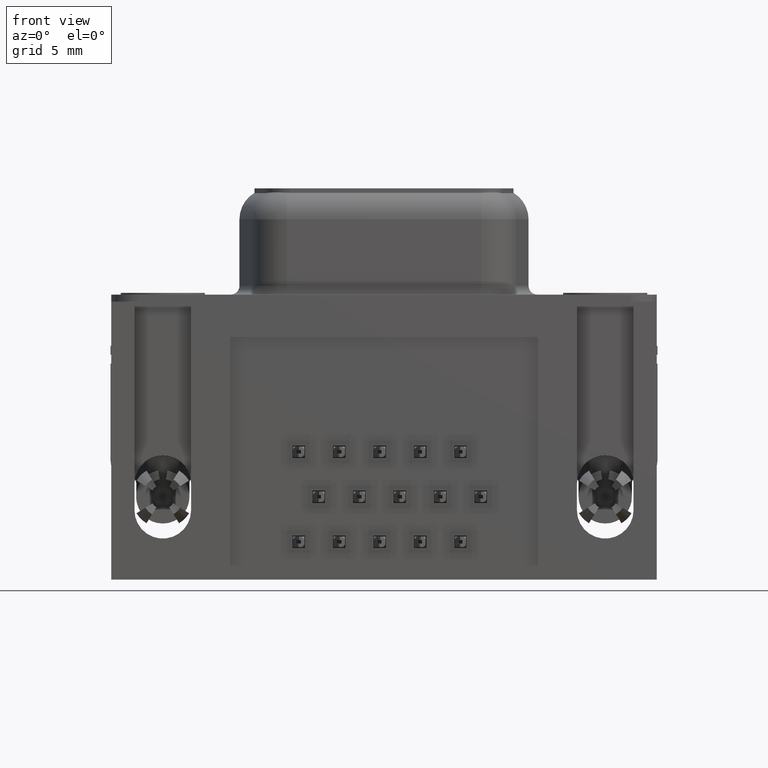
[diagram: clean part render]
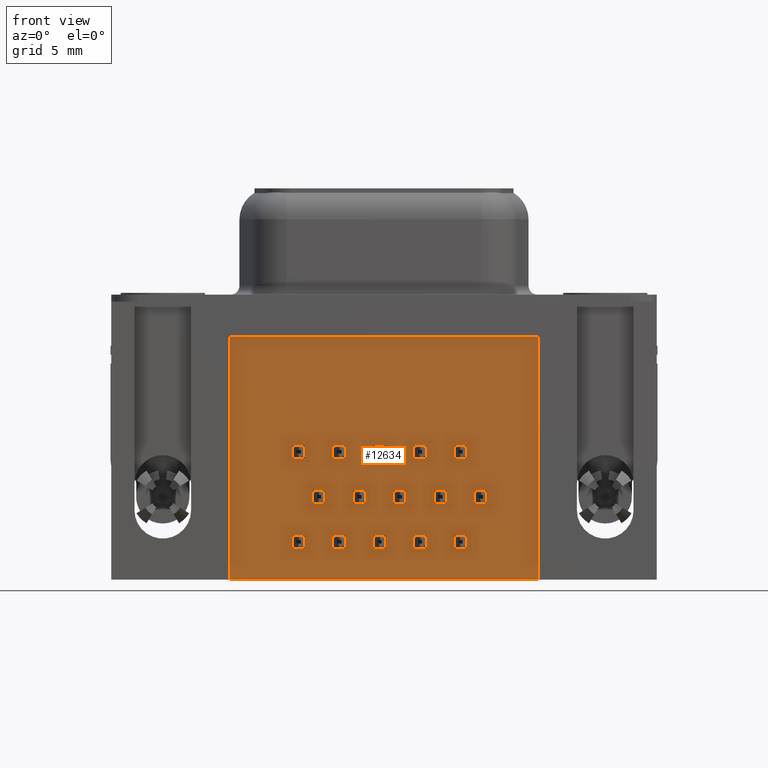
[diagram: same view with one face highlighted and labeled with its STEP entity id]
A machine part, front view. The second image highlights one B-rep face of the part: STEP entity #12634.
In plain terms, the highlighted planar face has unit normal (-0, -1, 0).
Its self-contained STEP definition (entity closure, byte-faithful):
#47 = VECTOR ( 'NONE', #7856, 1000.000000000000000 ) ;
#62 = CARTESIAN_POINT ( 'NONE',  ( 10.30700000000000900, -5.925000000000002500, -8.139999999999998800 ) ) ;
#116 = EDGE_CURVE ( 'NONE', #19990, #3479, #2802, .T. ) ;
#119 = ORIENTED_EDGE ( 'NONE', *, *, #27812, .F. ) ;
#156 = VERTEX_POINT ( 'NONE', #29931 ) ;
#193 = CARTESIAN_POINT ( 'NONE',  ( 15.32200000000001500, -5.925000000000004300, -10.68000000000000900 ) ) ;
#194 = EDGE_CURVE ( 'NONE', #5599, #8864, #23831, .T. ) ;
#323 = DIRECTION ( 'NONE',  ( -1.000000000000000000, -0.0000000000000000000, -0.0000000000000000000 ) ) ;
#366 = FACE_BOUND ( 'NONE', #14737, .T. ) ;
#397 = EDGE_CURVE ( 'NONE', #3912, #19319, #4724, .T. ) ;
#506 = ORIENTED_EDGE ( 'NONE', *, *, #3381, .F. ) ;
#514 = EDGE_CURVE ( 'NONE', #17130, #23204, #18872, .T. ) ;
#521 = CARTESIAN_POINT ( 'NONE',  ( 10.75000000000002100, -5.925000000000002500, -10.68000000000000900 ) ) ;
#527 = VECTOR ( 'NONE', #20125, 1000.000000000000000 ) ;
#618 = LINE ( 'NONE', #521, #5623 ) ;
#665 = CARTESIAN_POINT ( 'NONE',  ( 9.607000000000017100, -5.925000000000002500, -8.839999999999998100 ) ) ;
#680 = ORIENTED_EDGE ( 'NONE', *, *, #17107, .F. ) ;
#748 = DIRECTION ( 'NONE',  ( 1.000000000000000000, 0.0000000000000000000, 0.0000000000000000000 ) ) ;
#764 = CARTESIAN_POINT ( 'NONE',  ( 16.46500000000001400, -5.925000000000004300, -8.139999999999998800 ) ) ;
#902 = DIRECTION ( 'NONE',  ( -0.0000000000000000000, -0.0000000000000000000, 1.000000000000000000 ) ) ;
#903 = EDGE_CURVE ( 'NONE', #4232, #30013, #16948, .T. ) ;
#1036 = VECTOR ( 'NONE', #20446, 1000.000000000000000 ) ;
#1040 = DIRECTION ( 'NONE',  ( -0.0000000000000000000, -0.0000000000000000000, 1.000000000000000000 ) ) ;
#1090 = CARTESIAN_POINT ( 'NONE',  ( 8.021000000000018600, -5.925000000000002500, -13.22000000000000200 ) ) ;
#1164 = DIRECTION ( 'NONE',  ( 0.0000000000000000000, 0.0000000000000000000, -1.000000000000000000 ) ) ;
#1210 = CARTESIAN_POINT ( 'NONE',  ( 14.87900000000002300, -5.925000000000003400, -13.92000000000000000 ) ) ;
#1222 = VECTOR ( 'NONE', #1465, 1000.000000000000000 ) ;
#1254 = CARTESIAN_POINT ( 'NONE',  ( 14.17900000000000900, -5.925000000000003400, -8.839999999999998100 ) ) ;
#1270 = DIRECTION ( 'NONE',  ( -1.000000000000000000, -0.0000000000000000000, -0.0000000000000000000 ) ) ;
#1310 = DIRECTION ( 'NONE',  ( 1.000000000000000000, 0.0000000000000000000, 0.0000000000000000000 ) ) ;
#1358 = CARTESIAN_POINT ( 'NONE',  ( 10.30700000000002300, -5.925000000000002500, -13.22000000000000100 ) ) ;
#1387 = VECTOR ( 'NONE', #902, 1000.000000000000000 ) ;
#1465 = DIRECTION ( 'NONE',  ( 0.0000000000000000000, 0.0000000000000000000, -1.000000000000000000 ) ) ;
#1528 = CARTESIAN_POINT ( 'NONE',  ( 10.30700000000002300, -5.925000000000002500, -13.92000000000000000 ) ) ;
#1558 = LINE ( 'NONE', #11611, #27578 ) ;
#1619 = CARTESIAN_POINT ( 'NONE',  ( 15.32200000000001500, -5.925000000000004300, -10.68000000000000900 ) ) ;
#1622 = EDGE_CURVE ( 'NONE', #7292, #3862, #13840, .T. ) ;
#1764 = VERTEX_POINT ( 'NONE', #5960 ) ;
#1804 = CARTESIAN_POINT ( 'NONE',  ( 12.59300000000002000, -5.925000000000003400, -13.22000000000000100 ) ) ;
#1815 = CARTESIAN_POINT ( 'NONE',  ( 11.89300000000001300, -5.925000000000003400, -8.139999999999998800 ) ) ;
#1817 = LINE ( 'NONE', #12023, #7559 ) ;
#1870 = DIRECTION ( 'NONE',  ( 0.0000000000000000000, 0.0000000000000000000, -1.000000000000000000 ) ) ;
#1891 = VERTEX_POINT ( 'NONE', #30889 ) ;
#1928 = VECTOR ( 'NONE', #15178, 1000.000000000000000 ) ;
#1985 = ORIENTED_EDGE ( 'NONE', *, *, #28158, .F. ) ;
#2022 = LINE ( 'NONE', #16166, #1222 ) ;
#2292 = DIRECTION ( 'NONE',  ( -0.0000000000000000000, -0.0000000000000000000, 1.000000000000000000 ) ) ;
#2302 = VERTEX_POINT ( 'NONE', #10138 ) ;
#2353 = DIRECTION ( 'NONE',  ( -0.0000000000000000000, -0.0000000000000000000, 1.000000000000000000 ) ) ;
#2418 = LINE ( 'NONE', #25870, #27655 ) ;
#2545 = VECTOR ( 'NONE', #1040, 1000.000000000000000 ) ;
#2633 = CARTESIAN_POINT ( 'NONE',  ( 16.46500000000002100, -5.925000000000004300, -13.22000000000000100 ) ) ;
#2741 = EDGE_LOOP ( 'NONE', ( #6995, #680, #12143, #27664 ) ) ;
#2781 = CARTESIAN_POINT ( 'NONE',  ( 9.164000000000017500, -5.925000000000002500, -10.68000000000001000 ) ) ;
#2802 = LINE ( 'NONE', #12726, #9314 ) ;
#2914 = LINE ( 'NONE', #12033, #28154 ) ;
#2917 = CARTESIAN_POINT ( 'NONE',  ( 16.46500000000002100, -5.925000000000004300, -13.92000000000000000 ) ) ;
#2931 = DIRECTION ( 'NONE',  ( 1.000000000000000000, 0.0000000000000000000, 0.0000000000000000000 ) ) ;
#2985 = CARTESIAN_POINT ( 'NONE',  ( 3.790000000000006300, -5.925000000000003400, -15.69999999999999900 ) ) ;
#3043 = VECTOR ( 'NONE', #23812, 1000.000000000000000 ) ;
#3087 = EDGE_CURVE ( 'NONE', #13198, #17095, #2418, .T. ) ;
#3180 = VECTOR ( 'NONE', #4053, 1000.000000000000000 ) ;
#3191 = PLANE ( 'NONE',  #22057 ) ;
#3194 = VERTEX_POINT ( 'NONE', #4420 ) ;
#3229 = CARTESIAN_POINT ( 'NONE',  ( 9.607000000000017100, -5.925000000000002500, -8.139999999999998800 ) ) ;
#3268 = CARTESIAN_POINT ( 'NONE',  ( 16.46500000000001400, -5.925000000000004300, -8.839999999999998100 ) ) ;
#3285 = CARTESIAN_POINT ( 'NONE',  ( 7.321000000000013900, -5.925000000000002500, -8.140000000000000600 ) ) ;
#3381 = EDGE_CURVE ( 'NONE', #156, #4595, #2022, .T. ) ;
#3400 = VECTOR ( 'NONE', #10966, 1000.000000000000000 ) ;
#3404 = DIRECTION ( 'NONE',  ( 0.0000000000000000000, 0.0000000000000000000, -1.000000000000000000 ) ) ;
#3479 = VERTEX_POINT ( 'NONE', #14333 ) ;
#3581 = EDGE_LOOP ( 'NONE', ( #6596, #23654, #3985, #10088 ) ) ;
#3611 = EDGE_LOOP ( 'NONE', ( #16259, #24630, #26099, #25499 ) ) ;
#3740 = DIRECTION ( 'NONE',  ( 1.000000000000000000, 0.0000000000000000000, 0.0000000000000000000 ) ) ;
#3777 = VECTOR ( 'NONE', #9690, 1000.000000000000000 ) ;
#3783 = CARTESIAN_POINT ( 'NONE',  ( 11.45000000000001400, -5.925000000000003400, -11.38000000000000600 ) ) ;
#3794 = CARTESIAN_POINT ( 'NONE',  ( 9.607000000000017100, -5.925000000000002500, -8.839999999999998100 ) ) ;
#3807 = CARTESIAN_POINT ( 'NONE',  ( 13.73600000000001700, -5.925000000000003400, -10.68000000000000900 ) ) ;
#3862 = VERTEX_POINT ( 'NONE', #31135 ) ;
#3880 = CARTESIAN_POINT ( 'NONE',  ( 13.03600000000001700, -5.925000000000003400, -10.68000000000000900 ) ) ;
#3912 = VERTEX_POINT ( 'NONE', #31452 ) ;
#3922 = VECTOR ( 'NONE', #26040, 1000.000000000000000 ) ;
#3985 = ORIENTED_EDGE ( 'NONE', *, *, #23535, .F. ) ;
#4010 = DIRECTION ( 'NONE',  ( 0.0000000000000000000, 0.0000000000000000000, -1.000000000000000000 ) ) ;
#4053 = DIRECTION ( 'NONE',  ( -3.798664545934615100E-016, 0.0000000000000000000, -1.000000000000000000 ) ) ;
#4077 = VECTOR ( 'NONE', #4566, 1000.000000000000000 ) ;
#4232 = VERTEX_POINT ( 'NONE', #28357 ) ;
#4239 = LINE ( 'NONE', #7167, #22954 ) ;
#4420 = CARTESIAN_POINT ( 'NONE',  ( 14.17900000000002300, -5.925000000000003400, -13.92000000000000000 ) ) ;
#4470 = VECTOR ( 'NONE', #31572, 1000.000000000000000 ) ;
#4501 = EDGE_CURVE ( 'NONE', #25307, #22380, #21479, .T. ) ;
#4539 = LINE ( 'NONE', #7274, #29021 ) ;
#4566 = DIRECTION ( 'NONE',  ( 1.000000000000000000, 0.0000000000000000000, 0.0000000000000000000 ) ) ;
#4589 = VECTOR ( 'NONE', #17319, 1000.000000000000000 ) ;
#4595 = VERTEX_POINT ( 'NONE', #7420 ) ;
#4724 = LINE ( 'NONE', #18703, #3180 ) ;
#4730 = CARTESIAN_POINT ( 'NONE',  ( 3.790000000000011100, -5.925000000000001600, -2.000000000000000000 ) ) ;
#4846 = EDGE_CURVE ( 'NONE', #29199, #27840, #14584, .T. ) ;
#4953 = ORIENTED_EDGE ( 'NONE', *, *, #7003, .F. ) ;
#5128 = VECTOR ( 'NONE', #17340, 1000.000000000000000 ) ;
#5131 = CARTESIAN_POINT ( 'NONE',  ( 21.20000000000001000, -5.925000000000005200, -2.000000000000000000 ) ) ;
#5167 = EDGE_CURVE ( 'NONE', #14052, #22265, #20671, .T. ) ;
#5370 = FACE_BOUND ( 'NONE', #20260, .T. ) ;
#5379 = DIRECTION ( 'NONE',  ( 1.000000000000000000, 0.0000000000000000000, 0.0000000000000000000 ) ) ;
#5498 = ORIENTED_EDGE ( 'NONE', *, *, #5713, .F. ) ;
#5563 = LINE ( 'NONE', #29329, #30783 ) ;
#5599 = VERTEX_POINT ( 'NONE', #16784 ) ;
#5623 = VECTOR ( 'NONE', #20032, 1000.000000000000000 ) ;
#5650 = DIRECTION ( 'NONE',  ( -1.992789748393804400E-016, -1.000000000000000000, 7.569939764725505800E-032 ) ) ;
#5699 = LINE ( 'NONE', #30558, #22892 ) ;
#5713 = EDGE_CURVE ( 'NONE', #26038, #21771, #24809, .T. ) ;
#5763 = EDGE_CURVE ( 'NONE', #11571, #27091, #16061, .T. ) ;
#5799 = CARTESIAN_POINT ( 'NONE',  ( 15.32200000000001500, -5.925000000000004300, -10.68000000000000900 ) ) ;
#5841 = VECTOR ( 'NONE', #26348, 1000.000000000000000 ) ;
#5905 = LINE ( 'NONE', #26110, #18932 ) ;
#5917 = LINE ( 'NONE', #11842, #30373 ) ;
#5960 = CARTESIAN_POINT ( 'NONE',  ( 17.16500000000002000, -5.925000000000004300, -13.92000000000000000 ) ) ;
#6001 = EDGE_CURVE ( 'NONE', #23204, #21249, #17200, .T. ) ;
#6130 = FACE_BOUND ( 'NONE', #21651, .T. ) ;
#6171 = CARTESIAN_POINT ( 'NONE',  ( 15.32200000000001500, -5.925000000000004300, -11.38000000000000600 ) ) ;
#6228 = EDGE_CURVE ( 'NONE', #21193, #3194, #30522, .T. ) ;
#6274 = DIRECTION ( 'NONE',  ( -0.0000000000000000000, -0.0000000000000000000, 1.000000000000000000 ) ) ;
#6335 = CARTESIAN_POINT ( 'NONE',  ( 12.59300000000002000, -5.925000000000003400, -13.92000000000000000 ) ) ;
#6384 = EDGE_CURVE ( 'NONE', #30564, #24772, #19477, .T. ) ;
#6596 = ORIENTED_EDGE ( 'NONE', *, *, #25255, .F. ) ;
#6720 = LINE ( 'NONE', #13245, #31150 ) ;
#6841 = CARTESIAN_POINT ( 'NONE',  ( 7.321000000000021000, -5.925000000000002500, -13.22000000000000200 ) ) ;
#6907 = FACE_BOUND ( 'NONE', #13908, .T. ) ;
#6974 = VECTOR ( 'NONE', #1270, 1000.000000000000000 ) ;
#6995 = ORIENTED_EDGE ( 'NONE', *, *, #8642, .F. ) ;
#7003 = EDGE_CURVE ( 'NONE', #22132, #8216, #25889, .T. ) ;
#7044 = CARTESIAN_POINT ( 'NONE',  ( 9.607000000000017100, -5.925000000000002500, -13.22000000000000100 ) ) ;
#7069 = ORIENTED_EDGE ( 'NONE', *, *, #15560, .F. ) ;
#7088 = EDGE_LOOP ( 'NONE', ( #20973, #18049, #16153, #13719 ) ) ;
#7103 = VERTEX_POINT ( 'NONE', #30043 ) ;
#7152 = EDGE_LOOP ( 'NONE', ( #29579, #18508, #17437, #12884 ) ) ;
#7167 = CARTESIAN_POINT ( 'NONE',  ( 7.321000000000013900, -5.925000000000002500, -8.839999999999999900 ) ) ;
#7274 = CARTESIAN_POINT ( 'NONE',  ( 8.021000000000018600, -5.925000000000002500, -13.22000000000000200 ) ) ;
#7292 = VERTEX_POINT ( 'NONE', #31594 ) ;
#7320 = VECTOR ( 'NONE', #1164, 1000.000000000000000 ) ;
#7420 = CARTESIAN_POINT ( 'NONE',  ( 10.75000000000002100, -5.925000000000002500, -11.38000000000000600 ) ) ;
#7439 = EDGE_CURVE ( 'NONE', #7644, #2302, #16752, .T. ) ;
#7559 = VECTOR ( 'NONE', #14477, 1000.000000000000000 ) ;
#7597 = EDGE_CURVE ( 'NONE', #1891, #4232, #20919, .T. ) ;
#7644 = VERTEX_POINT ( 'NONE', #6171 ) ;
#7669 = FACE_BOUND ( 'NONE', #30908, .T. ) ;
#7675 = VECTOR ( 'NONE', #7706, 1000.000000000000000 ) ;
#7706 = DIRECTION ( 'NONE',  ( 0.0000000000000000000, 0.0000000000000000000, -1.000000000000000000 ) ) ;
#7771 = VERTEX_POINT ( 'NONE', #28613 ) ;
#7856 = DIRECTION ( 'NONE',  ( 0.0000000000000000000, 0.0000000000000000000, -1.000000000000000000 ) ) ;
#8011 = ORIENTED_EDGE ( 'NONE', *, *, #6228, .F. ) ;
#8129 = EDGE_LOOP ( 'NONE', ( #8314, #30347, #7069, #25015 ) ) ;
#8170 = CARTESIAN_POINT ( 'NONE',  ( 16.02200000000001600, -5.925000000000004300, -10.68000000000000900 ) ) ;
#8208 = VERTEX_POINT ( 'NONE', #21093 ) ;
#8216 = VERTEX_POINT ( 'NONE', #1619 ) ;
#8314 = ORIENTED_EDGE ( 'NONE', *, *, #15668, .F. ) ;
#8409 = VERTEX_POINT ( 'NONE', #29311 ) ;
#8422 = EDGE_CURVE ( 'NONE', #4595, #19990, #20924, .T. ) ;
#8454 = CARTESIAN_POINT ( 'NONE',  ( 21.20000000000001000, -5.925000000000005200, -2.000000000000000000 ) ) ;
#8475 = LINE ( 'NONE', #13493, #6974 ) ;
#8523 = EDGE_CURVE ( 'NONE', #3479, #156, #618, .T. ) ;
#8631 = CARTESIAN_POINT ( 'NONE',  ( 8.021000000000013200, -5.925000000000002500, -8.839999999999999900 ) ) ;
#8642 = EDGE_CURVE ( 'NONE', #29347, #18536, #22054, .T. ) ;
#8681 = VECTOR ( 'NONE', #27042, 1000.000000000000000 ) ;
#8712 = VECTOR ( 'NONE', #24110, 1000.000000000000000 ) ;
#8858 = EDGE_CURVE ( 'NONE', #26509, #7292, #9436, .T. ) ;
#8864 = VERTEX_POINT ( 'NONE', #14230 ) ;
#9000 = VECTOR ( 'NONE', #20340, 1000.000000000000000 ) ;
#9035 = LINE ( 'NONE', #3794, #14786 ) ;
#9291 = DIRECTION ( 'NONE',  ( -1.000000000000000000, -0.0000000000000000000, -0.0000000000000000000 ) ) ;
#9314 = VECTOR ( 'NONE', #27350, 1000.000000000000000 ) ;
#9356 = VECTOR ( 'NONE', #19497, 1000.000000000000000 ) ;
#9389 = DIRECTION ( 'NONE',  ( -1.000000000000000000, -0.0000000000000000000, -0.0000000000000000000 ) ) ;
#9436 = LINE ( 'NONE', #6841, #21667 ) ;
#9465 = VECTOR ( 'NONE', #5379, 1000.000000000000000 ) ;
#9471 = CARTESIAN_POINT ( 'NONE',  ( 14.17900000000002300, -5.925000000000003400, -13.22000000000000100 ) ) ;
#9506 = CARTESIAN_POINT ( 'NONE',  ( 17.60800000000001800, -5.925000000000004300, -10.68000000000000900 ) ) ;
#9628 = DIRECTION ( 'NONE',  ( 1.000000000000000000, 0.0000000000000000000, 0.0000000000000000000 ) ) ;
#9662 = EDGE_CURVE ( 'NONE', #8409, #25307, #5563, .T. ) ;
#9690 = DIRECTION ( 'NONE',  ( 0.0000000000000000000, 0.0000000000000000000, -1.000000000000000000 ) ) ;
#9711 = CARTESIAN_POINT ( 'NONE',  ( 17.16500000000001300, -5.925000000000004300, -8.139999999999998800 ) ) ;
#9740 = LINE ( 'NONE', #1254, #29240 ) ;
#9772 = EDGE_CURVE ( 'NONE', #10174, #21357, #21232, .T. ) ;
#9807 = CARTESIAN_POINT ( 'NONE',  ( 17.16500000000001300, -5.925000000000004300, -8.839999999999998100 ) ) ;
#9842 = ORIENTED_EDGE ( 'NONE', *, *, #4501, .F. ) ;
#9938 = VECTOR ( 'NONE', #14502, 1000.000000000000000 ) ;
#10088 = ORIENTED_EDGE ( 'NONE', *, *, #194, .F. ) ;
#10138 = CARTESIAN_POINT ( 'NONE',  ( 16.02200000000001600, -5.925000000000004300, -11.38000000000000600 ) ) ;
#10174 = VERTEX_POINT ( 'NONE', #11983 ) ;
#10211 = VECTOR ( 'NONE', #15074, 1000.000000000000000 ) ;
#10226 = ORIENTED_EDGE ( 'NONE', *, *, #8422, .F. ) ;
#10342 = VECTOR ( 'NONE', #20980, 1000.000000000000000 ) ;
#10461 = CARTESIAN_POINT ( 'NONE',  ( 17.60800000000001800, -5.925000000000004300, -10.68000000000000900 ) ) ;
#10499 = CARTESIAN_POINT ( 'NONE',  ( 11.89300000000002000, -5.925000000000003400, -13.92000000000000000 ) ) ;
#10572 = LINE ( 'NONE', #23235, #15569 ) ;
#10580 = CARTESIAN_POINT ( 'NONE',  ( 11.89300000000001300, -5.925000000000003400, -8.839999999999998100 ) ) ;
#10632 = CARTESIAN_POINT ( 'NONE',  ( 14.87900000000000800, -5.925000000000003400, -8.839999999999998100 ) ) ;
#10790 = CARTESIAN_POINT ( 'NONE',  ( 14.87900000000000800, -5.925000000000003400, -8.139999999999998800 ) ) ;
#10884 = DIRECTION ( 'NONE',  ( -0.0000000000000000000, -0.0000000000000000000, 1.000000000000000000 ) ) ;
#10966 = DIRECTION ( 'NONE',  ( 0.0000000000000000000, 0.0000000000000000000, -1.000000000000000000 ) ) ;
#11019 = EDGE_LOOP ( 'NONE', ( #5498, #27613, #14870, #26260 ) ) ;
#11305 = CARTESIAN_POINT ( 'NONE',  ( 13.73600000000001700, -5.925000000000003400, -11.38000000000000600 ) ) ;
#11336 = VECTOR ( 'NONE', #20379, 1000.000000000000000 ) ;
#11423 = ORIENTED_EDGE ( 'NONE', *, *, #15394, .F. ) ;
#11512 = EDGE_CURVE ( 'NONE', #27840, #13198, #8475, .T. ) ;
#11571 = VERTEX_POINT ( 'NONE', #6335 ) ;
#11611 = CARTESIAN_POINT ( 'NONE',  ( 14.87900000000002300, -5.925000000000003400, -13.22000000000000100 ) ) ;
#11717 = LINE ( 'NONE', #16550, #17477 ) ;
#11741 = ORIENTED_EDGE ( 'NONE', *, *, #24416, .F. ) ;
#11778 = LINE ( 'NONE', #8454, #18294 ) ;
#11842 = CARTESIAN_POINT ( 'NONE',  ( 14.17900000000000900, -5.925000000000003400, -8.139999999999998800 ) ) ;
#11855 = LINE ( 'NONE', #2633, #4589 ) ;
#11873 = FACE_BOUND ( 'NONE', #21472, .T. ) ;
#11983 = CARTESIAN_POINT ( 'NONE',  ( 9.607000000000017100, -5.925000000000002500, -8.139999999999998800 ) ) ;
#12023 = CARTESIAN_POINT ( 'NONE',  ( 14.17900000000000900, -5.925000000000003400, -8.139999999999998800 ) ) ;
#12033 = CARTESIAN_POINT ( 'NONE',  ( 17.16500000000002000, -5.925000000000004300, -13.22000000000000100 ) ) ;
#12058 = CARTESIAN_POINT ( 'NONE',  ( 9.164000000000017500, -5.925000000000002500, -10.68000000000001000 ) ) ;
#12065 = CARTESIAN_POINT ( 'NONE',  ( 11.89300000000002000, -5.925000000000003400, -13.92000000000000000 ) ) ;
#12113 = LINE ( 'NONE', #3268, #11336 ) ;
#12143 = ORIENTED_EDGE ( 'NONE', *, *, #23851, .F. ) ;
#12157 = VECTOR ( 'NONE', #29525, 1000.000000000000000 ) ;
#12504 = EDGE_CURVE ( 'NONE', #31086, #26038, #4239, .T. ) ;
#12572 = ORIENTED_EDGE ( 'NONE', *, *, #9772, .F. ) ;
#12595 = EDGE_CURVE ( 'NONE', #29502, #17130, #14191, .T. ) ;
#12634 = ADVANCED_FACE ( 'NONE', ( #7669, #19927, #366, #25597, #19160, #6907, #12635, #6130, #31341, #24831, #18383, #11873, #5370, #30578, #24076, #17629 ), #3191, .T. ) ;
#12635 = FACE_BOUND ( 'NONE', #13874, .T. ) ;
#12726 = CARTESIAN_POINT ( 'NONE',  ( 11.45000000000001400, -5.925000000000003400, -10.68000000000000900 ) ) ;
#12781 = CARTESIAN_POINT ( 'NONE',  ( 7.321000000000013900, -5.925000000000002500, -8.140000000000000600 ) ) ;
#12884 = ORIENTED_EDGE ( 'NONE', *, *, #11512, .F. ) ;
#12927 = DIRECTION ( 'NONE',  ( -1.000000000000000000, -0.0000000000000000000, -0.0000000000000000000 ) ) ;
#12938 = ORIENTED_EDGE ( 'NONE', *, *, #13007, .F. ) ;
#13007 = EDGE_CURVE ( 'NONE', #25000, #21193, #16470, .T. ) ;
#13077 = LINE ( 'NONE', #12781, #47 ) ;
#13171 = ORIENTED_EDGE ( 'NONE', *, *, #13899, .F. ) ;
#13198 = VERTEX_POINT ( 'NONE', #764 ) ;
#13215 = LINE ( 'NONE', #4730, #24670 ) ;
#13245 = CARTESIAN_POINT ( 'NONE',  ( 10.30700000000000900, -5.925000000000002500, -8.139999999999998800 ) ) ;
#13389 = DIRECTION ( 'NONE',  ( -0.0000000000000000000, -0.0000000000000000000, 1.000000000000000000 ) ) ;
#13467 = CARTESIAN_POINT ( 'NONE',  ( 16.02200000000001600, -5.925000000000004300, -10.68000000000000900 ) ) ;
#13493 = CARTESIAN_POINT ( 'NONE',  ( 16.46500000000001400, -5.925000000000004300, -8.139999999999998800 ) ) ;
#13589 = EDGE_CURVE ( 'NONE', #27091, #14052, #5699, .T. ) ;
#13719 = ORIENTED_EDGE ( 'NONE', *, *, #16089, .T. ) ;
#13782 = VERTEX_POINT ( 'NONE', #26389 ) ;
#13840 = LINE ( 'NONE', #17122, #7320 ) ;
#13874 = EDGE_LOOP ( 'NONE', ( #15287, #15093, #21197, #31055 ) ) ;
#13899 = EDGE_CURVE ( 'NONE', #13782, #26509, #4539, .T. ) ;
#13908 = EDGE_LOOP ( 'NONE', ( #14457, #22527, #19516, #4953 ) ) ;
#14001 = LINE ( 'NONE', #28782, #20490 ) ;
#14052 = VERTEX_POINT ( 'NONE', #22434 ) ;
#14191 = LINE ( 'NONE', #17751, #1928 ) ;
#14220 = EDGE_CURVE ( 'NONE', #22265, #11571, #21345, .T. ) ;
#14227 = VECTOR ( 'NONE', #21641, 1000.000000000000000 ) ;
#14230 = CARTESIAN_POINT ( 'NONE',  ( 17.60800000000001800, -5.925000000000004300, -10.68000000000000900 ) ) ;
#14249 = EDGE_CURVE ( 'NONE', #8216, #7644, #26294, .T. ) ;
#14288 = CARTESIAN_POINT ( 'NONE',  ( 8.464000000000018200, -5.925000000000002500, -11.38000000000000800 ) ) ;
#14333 = CARTESIAN_POINT ( 'NONE',  ( 11.45000000000001400, -5.925000000000003400, -10.68000000000000900 ) ) ;
#14348 = EDGE_CURVE ( 'NONE', #25433, #18862, #11778, .T. ) ;
#14457 = ORIENTED_EDGE ( 'NONE', *, *, #30735, .F. ) ;
#14463 = CARTESIAN_POINT ( 'NONE',  ( 8.021000000000013200, -5.925000000000002500, -8.140000000000000600 ) ) ;
#14477 = DIRECTION ( 'NONE',  ( 0.0000000000000000000, 0.0000000000000000000, -1.000000000000000000 ) ) ;
#14502 = DIRECTION ( 'NONE',  ( -1.000000000000000000, -0.0000000000000000000, -0.0000000000000000000 ) ) ;
#14584 = LINE ( 'NONE', #28029, #26787 ) ;
#14593 = CARTESIAN_POINT ( 'NONE',  ( 8.464000000000018200, -5.925000000000002500, -11.38000000000000800 ) ) ;
#14686 = VERTEX_POINT ( 'NONE', #22122 ) ;
#14737 = EDGE_LOOP ( 'NONE', ( #20631, #11423, #16062, #19897 ) ) ;
#14782 = CARTESIAN_POINT ( 'NONE',  ( 10.75000000000002100, -5.925000000000002500, -11.38000000000000600 ) ) ;
#14786 = VECTOR ( 'NONE', #1310, 1000.000000000000000 ) ;
#14808 = EDGE_CURVE ( 'NONE', #15198, #30564, #29355, .T. ) ;
#14836 = CARTESIAN_POINT ( 'NONE',  ( 13.03600000000001700, -5.925000000000003400, -10.68000000000000900 ) ) ;
#14856 = VECTOR ( 'NONE', #748, 1000.000000000000000 ) ;
#14870 = ORIENTED_EDGE ( 'NONE', *, *, #19744, .F. ) ;
#14872 = CARTESIAN_POINT ( 'NONE',  ( 3.790000000000006300, -5.925000000000001600, -15.69999999999999900 ) ) ;
#14888 = CARTESIAN_POINT ( 'NONE',  ( 9.607000000000017100, -5.925000000000002500, -13.22000000000000100 ) ) ;
#15063 = ORIENTED_EDGE ( 'NONE', *, *, #29546, .F. ) ;
#15074 = DIRECTION ( 'NONE',  ( 1.000000000000000000, 0.0000000000000000000, 0.0000000000000000000 ) ) ;
#15093 = ORIENTED_EDGE ( 'NONE', *, *, #6384, .F. ) ;
#15178 = DIRECTION ( 'NONE',  ( -0.0000000000000000000, -0.0000000000000000000, 1.000000000000000000 ) ) ;
#15198 = VERTEX_POINT ( 'NONE', #14836 ) ;
#15287 = ORIENTED_EDGE ( 'NONE', *, *, #15432, .F. ) ;
#15380 = VERTEX_POINT ( 'NONE', #1210 ) ;
#15394 = EDGE_CURVE ( 'NONE', #21249, #29502, #10572, .T. ) ;
#15432 = EDGE_CURVE ( 'NONE', #24772, #14686, #28556, .T. ) ;
#15560 = EDGE_CURVE ( 'NONE', #7103, #31293, #11717, .T. ) ;
#15569 = VECTOR ( 'NONE', #25678, 1000.000000000000000 ) ;
#15580 = VECTOR ( 'NONE', #31081, 1000.000000000000000 ) ;
#15639 = CARTESIAN_POINT ( 'NONE',  ( 16.46500000000002100, -5.925000000000004300, -13.92000000000000000 ) ) ;
#15646 = VERTEX_POINT ( 'NONE', #29025 ) ;
#15668 = EDGE_CURVE ( 'NONE', #1764, #30058, #2914, .T. ) ;
#15671 = ORIENTED_EDGE ( 'NONE', *, *, #8858, .F. ) ;
#15874 = VECTOR ( 'NONE', #323, 1000.000000000000000 ) ;
#15963 = DIRECTION ( 'NONE',  ( -1.000000000000000000, -0.0000000000000000000, -0.0000000000000000000 ) ) ;
#16036 = EDGE_CURVE ( 'NONE', #16988, #1891, #14001, .T. ) ;
#16061 = LINE ( 'NONE', #1804, #3043 ) ;
#16062 = ORIENTED_EDGE ( 'NONE', *, *, #6001, .F. ) ;
#16089 = EDGE_CURVE ( 'NONE', #18862, #3912, #13215, .T. ) ;
#16153 = ORIENTED_EDGE ( 'NONE', *, *, #14348, .T. ) ;
#16166 = CARTESIAN_POINT ( 'NONE',  ( 10.75000000000002100, -5.925000000000002500, -10.68000000000000900 ) ) ;
#16259 = ORIENTED_EDGE ( 'NONE', *, *, #5763, .F. ) ;
#16337 = LINE ( 'NONE', #30489, #28545 ) ;
#16470 = LINE ( 'NONE', #16980, #9938 ) ;
#16550 = CARTESIAN_POINT ( 'NONE',  ( 16.46500000000002100, -5.925000000000004300, -13.22000000000000100 ) ) ;
#16659 = EDGE_CURVE ( 'NONE', #18536, #7771, #5917, .T. ) ;
#16698 = LINE ( 'NONE', #16962, #23152 ) ;
#16752 = LINE ( 'NONE', #27227, #10211 ) ;
#16784 = CARTESIAN_POINT ( 'NONE',  ( 18.30800000000001800, -5.925000000000004300, -10.68000000000000900 ) ) ;
#16790 = EDGE_CURVE ( 'NONE', #8208, #22443, #28871, .T. ) ;
#16896 = EDGE_CURVE ( 'NONE', #28697, #8409, #26543, .T. ) ;
#16936 = DIRECTION ( 'NONE',  ( -1.000000000000000000, 1.992789748393804900E-016, -0.0000000000000000000 ) ) ;
#16948 = LINE ( 'NONE', #30094, #3922 ) ;
#16962 = CARTESIAN_POINT ( 'NONE',  ( 18.30800000000001800, -5.925000000000004300, -10.68000000000000900 ) ) ;
#16980 = CARTESIAN_POINT ( 'NONE',  ( 14.17900000000002300, -5.925000000000003400, -13.22000000000000100 ) ) ;
#16988 = VERTEX_POINT ( 'NONE', #10580 ) ;
#17095 = VERTEX_POINT ( 'NONE', #28109 ) ;
#17107 = EDGE_CURVE ( 'NONE', #15646, #29347, #9740, .T. ) ;
#17122 = CARTESIAN_POINT ( 'NONE',  ( 7.321000000000021000, -5.925000000000002500, -13.22000000000000200 ) ) ;
#17130 = VERTEX_POINT ( 'NONE', #1358 ) ;
#17200 = LINE ( 'NONE', #25576, #3400 ) ;
#17319 = DIRECTION ( 'NONE',  ( -1.000000000000000000, -0.0000000000000000000, -0.0000000000000000000 ) ) ;
#17321 = CARTESIAN_POINT ( 'NONE',  ( 13.03600000000001700, -5.925000000000003400, -11.38000000000000600 ) ) ;
#17340 = DIRECTION ( 'NONE',  ( 1.000000000000000000, -1.992789748393804200E-016, 0.0000000000000000000 ) ) ;
#17415 = ORIENTED_EDGE ( 'NONE', *, *, #21113, .F. ) ;
#17437 = ORIENTED_EDGE ( 'NONE', *, *, #3087, .F. ) ;
#17477 = VECTOR ( 'NONE', #1870, 1000.000000000000000 ) ;
#17482 = CARTESIAN_POINT ( 'NONE',  ( 9.607000000000017100, -5.925000000000002500, -8.139999999999998800 ) ) ;
#17604 = VECTOR ( 'NONE', #18727, 1000.000000000000000 ) ;
#17629 = FACE_OUTER_BOUND ( 'NONE', #7088, .T. ) ;
#17674 = CARTESIAN_POINT ( 'NONE',  ( 8.464000000000018200, -5.925000000000002500, -10.68000000000001000 ) ) ;
#17751 = CARTESIAN_POINT ( 'NONE',  ( 10.30700000000002300, -5.925000000000002500, -13.22000000000000100 ) ) ;
#17835 = CARTESIAN_POINT ( 'NONE',  ( 18.30800000000001800, -5.925000000000004300, -11.38000000000000600 ) ) ;
#17949 = ORIENTED_EDGE ( 'NONE', *, *, #9662, .F. ) ;
#18049 = ORIENTED_EDGE ( 'NONE', *, *, #30158, .T. ) ;
#18060 = CARTESIAN_POINT ( 'NONE',  ( 12.59300000000001200, -5.925000000000003400, -8.139999999999998800 ) ) ;
#18294 = VECTOR ( 'NONE', #23097, 1000.000000000000000 ) ;
#18383 = FACE_BOUND ( 'NONE', #2741, .T. ) ;
#18508 = ORIENTED_EDGE ( 'NONE', *, *, #28041, .F. ) ;
#18536 = VERTEX_POINT ( 'NONE', #28437 ) ;
#18703 = CARTESIAN_POINT ( 'NONE',  ( 3.790000000000011100, -5.925000000000001600, -2.000000000000000000 ) ) ;
#18727 = DIRECTION ( 'NONE',  ( -0.0000000000000000000, -0.0000000000000000000, 1.000000000000000000 ) ) ;
#18822 = VERTEX_POINT ( 'NONE', #62 ) ;
#18862 = VERTEX_POINT ( 'NONE', #5131 ) ;
#18872 = LINE ( 'NONE', #7044, #5841 ) ;
#18932 = VECTOR ( 'NONE', #28910, 1000.000000000000000 ) ;
#19160 = FACE_BOUND ( 'NONE', #8129, .T. ) ;
#19319 = VERTEX_POINT ( 'NONE', #2985 ) ;
#19477 = LINE ( 'NONE', #20061, #31653 ) ;
#19497 = DIRECTION ( 'NONE',  ( 1.000000000000000000, 0.0000000000000000000, 0.0000000000000000000 ) ) ;
#19516 = ORIENTED_EDGE ( 'NONE', *, *, #14249, .F. ) ;
#19744 = EDGE_CURVE ( 'NONE', #20864, #31086, #13077, .T. ) ;
#19858 = ORIENTED_EDGE ( 'NONE', *, *, #903, .F. ) ;
#19897 = ORIENTED_EDGE ( 'NONE', *, *, #514, .F. ) ;
#19927 = FACE_BOUND ( 'NONE', #3611, .T. ) ;
#19969 = CARTESIAN_POINT ( 'NONE',  ( 9.607000000000017100, -5.925000000000002500, -13.92000000000000000 ) ) ;
#19990 = VERTEX_POINT ( 'NONE', #3783 ) ;
#20032 = DIRECTION ( 'NONE',  ( -1.000000000000000000, 1.239088197126304500E-015, -0.0000000000000000000 ) ) ;
#20061 = CARTESIAN_POINT ( 'NONE',  ( 13.03600000000001700, -5.925000000000003400, -11.38000000000000600 ) ) ;
#20074 = CARTESIAN_POINT ( 'NONE',  ( 14.87900000000002300, -5.925000000000003400, -13.22000000000000100 ) ) ;
#20125 = DIRECTION ( 'NONE',  ( -1.000000000000000000, -0.0000000000000000000, -0.0000000000000000000 ) ) ;
#20260 = EDGE_LOOP ( 'NONE', ( #29032, #1985, #12572, #31083 ) ) ;
#20297 = CARTESIAN_POINT ( 'NONE',  ( -1.181503277014172100E-015, -5.925000000000000700, 4.750137202365255200E-031 ) ) ;
#20340 = DIRECTION ( 'NONE',  ( 0.0000000000000000000, 0.0000000000000000000, -1.000000000000000000 ) ) ;
#20379 = DIRECTION ( 'NONE',  ( 1.000000000000000000, 0.0000000000000000000, 0.0000000000000000000 ) ) ;
#20446 = DIRECTION ( 'NONE',  ( 0.0000000000000000000, 0.0000000000000000000, -1.000000000000000000 ) ) ;
#20490 = VECTOR ( 'NONE', #31200, 1000.000000000000000 ) ;
#20510 = CARTESIAN_POINT ( 'NONE',  ( 13.03600000000001700, -5.925000000000003400, -10.68000000000000900 ) ) ;
#20516 = VECTOR ( 'NONE', #6274, 1000.000000000000000 ) ;
#20631 = ORIENTED_EDGE ( 'NONE', *, *, #12595, .F. ) ;
#20671 = LINE ( 'NONE', #24766, #7675 ) ;
#20844 = VERTEX_POINT ( 'NONE', #22830 ) ;
#20864 = VERTEX_POINT ( 'NONE', #3285 ) ;
#20919 = LINE ( 'NONE', #18060, #1387 ) ;
#20924 = LINE ( 'NONE', #14782, #8681 ) ;
#20973 = ORIENTED_EDGE ( 'NONE', *, *, #397, .T. ) ;
#20980 = DIRECTION ( 'NONE',  ( -1.000000000000000000, -0.0000000000000000000, -0.0000000000000000000 ) ) ;
#21093 = CARTESIAN_POINT ( 'NONE',  ( 17.60800000000001800, -5.925000000000004300, -11.38000000000000600 ) ) ;
#21113 = EDGE_CURVE ( 'NONE', #15380, #25000, #1558, .T. ) ;
#21193 = VERTEX_POINT ( 'NONE', #9471 ) ;
#21197 = ORIENTED_EDGE ( 'NONE', *, *, #14808, .F. ) ;
#21232 = LINE ( 'NONE', #3229, #9000 ) ;
#21249 = VERTEX_POINT ( 'NONE', #19969 ) ;
#21314 = VECTOR ( 'NONE', #3404, 1000.000000000000000 ) ;
#21345 = LINE ( 'NONE', #10499, #14856 ) ;
#21357 = VERTEX_POINT ( 'NONE', #665 ) ;
#21472 = EDGE_LOOP ( 'NONE', ( #29601, #23557, #11741, #19858 ) ) ;
#21479 = LINE ( 'NONE', #14288, #14227 ) ;
#21592 = EDGE_CURVE ( 'NONE', #14686, #15198, #29099, .T. ) ;
#21641 = DIRECTION ( 'NONE',  ( 1.000000000000000000, 0.0000000000000000000, 0.0000000000000000000 ) ) ;
#21651 = EDGE_LOOP ( 'NONE', ( #30528, #10226, #506, #28459 ) ) ;
#21665 = CARTESIAN_POINT ( 'NONE',  ( 7.321000000000021000, -5.925000000000002500, -13.92000000000000200 ) ) ;
#21667 = VECTOR ( 'NONE', #9291, 1000.000000000000000 ) ;
#21771 = VERTEX_POINT ( 'NONE', #14463 ) ;
#22054 = LINE ( 'NONE', #10790, #2545 ) ;
#22057 = AXIS2_PLACEMENT_3D ( 'NONE', #20297, #5650, #22733 ) ;
#22060 = LINE ( 'NONE', #1815, #15580 ) ;
#22122 = CARTESIAN_POINT ( 'NONE',  ( 13.73600000000001700, -5.925000000000003400, -10.68000000000000900 ) ) ;
#22132 = VERTEX_POINT ( 'NONE', #13467 ) ;
#22265 = VERTEX_POINT ( 'NONE', #12065 ) ;
#22325 = EDGE_CURVE ( 'NONE', #30058, #7103, #11855, .T. ) ;
#22380 = VERTEX_POINT ( 'NONE', #22409 ) ;
#22409 = CARTESIAN_POINT ( 'NONE',  ( 9.164000000000017500, -5.925000000000002500, -11.38000000000000800 ) ) ;
#22434 = CARTESIAN_POINT ( 'NONE',  ( 11.89300000000002000, -5.925000000000003400, -13.22000000000000100 ) ) ;
#22443 = VERTEX_POINT ( 'NONE', #17835 ) ;
#22527 = ORIENTED_EDGE ( 'NONE', *, *, #7439, .F. ) ;
#22551 = ORIENTED_EDGE ( 'NONE', *, *, #16896, .F. ) ;
#22675 = ORIENTED_EDGE ( 'NONE', *, *, #1622, .F. ) ;
#22733 = DIRECTION ( 'NONE',  ( 1.000000000000000000, -1.992789748393804400E-016, 0.0000000000000000000 ) ) ;
#22811 = DIRECTION ( 'NONE',  ( -0.0000000000000000000, -0.0000000000000000000, 1.000000000000000000 ) ) ;
#22830 = CARTESIAN_POINT ( 'NONE',  ( 10.30700000000000900, -5.925000000000002500, -8.839999999999998100 ) ) ;
#22892 = VECTOR ( 'NONE', #15963, 1000.000000000000000 ) ;
#22954 = VECTOR ( 'NONE', #9628, 1000.000000000000000 ) ;
#23097 = DIRECTION ( 'NONE',  ( -0.0000000000000000000, -0.0000000000000000000, 1.000000000000000000 ) ) ;
#23152 = VECTOR ( 'NONE', #29124, 1000.000000000000000 ) ;
#23204 = VERTEX_POINT ( 'NONE', #14888 ) ;
#23235 = CARTESIAN_POINT ( 'NONE',  ( 9.607000000000017100, -5.925000000000002500, -13.92000000000000000 ) ) ;
#23535 = EDGE_CURVE ( 'NONE', #8864, #8208, #28227, .T. ) ;
#23557 = ORIENTED_EDGE ( 'NONE', *, *, #16036, .F. ) ;
#23654 = ORIENTED_EDGE ( 'NONE', *, *, #16790, .F. ) ;
#23801 = LINE ( 'NONE', #8170, #30300 ) ;
#23812 = DIRECTION ( 'NONE',  ( -0.0000000000000000000, -0.0000000000000000000, 1.000000000000000000 ) ) ;
#23831 = LINE ( 'NONE', #10461, #27269 ) ;
#23851 = EDGE_CURVE ( 'NONE', #7771, #15646, #1817, .T. ) ;
#23862 = LINE ( 'NONE', #17482, #15874 ) ;
#23949 = LINE ( 'NONE', #12058, #4470 ) ;
#24046 = EDGE_CURVE ( 'NONE', #31293, #1764, #28979, .T. ) ;
#24076 = FACE_BOUND ( 'NONE', #7152, .T. ) ;
#24110 = DIRECTION ( 'NONE',  ( 0.0000000000000000000, 0.0000000000000000000, -1.000000000000000000 ) ) ;
#24311 = LINE ( 'NONE', #21665, #4077 ) ;
#24374 = CARTESIAN_POINT ( 'NONE',  ( 7.321000000000013900, -5.925000000000002500, -8.839999999999999900 ) ) ;
#24416 = EDGE_CURVE ( 'NONE', #30013, #16988, #22060, .T. ) ;
#24592 = LINE ( 'NONE', #14872, #5128 ) ;
#24630 = ORIENTED_EDGE ( 'NONE', *, *, #14220, .F. ) ;
#24670 = VECTOR ( 'NONE', #16936, 1000.000000000000000 ) ;
#24766 = CARTESIAN_POINT ( 'NONE',  ( 11.89300000000002000, -5.925000000000003400, -13.22000000000000100 ) ) ;
#24772 = VERTEX_POINT ( 'NONE', #11305 ) ;
#24809 = LINE ( 'NONE', #30865, #17604 ) ;
#24831 = FACE_BOUND ( 'NONE', #3581, .T. ) ;
#24904 = EDGE_LOOP ( 'NONE', ( #119, #9842, #17949, #22551 ) ) ;
#24924 = EDGE_CURVE ( 'NONE', #3862, #13782, #24311, .T. ) ;
#25000 = VERTEX_POINT ( 'NONE', #20074 ) ;
#25015 = ORIENTED_EDGE ( 'NONE', *, *, #22325, .F. ) ;
#25255 = EDGE_CURVE ( 'NONE', #22443, #5599, #16698, .T. ) ;
#25307 = VERTEX_POINT ( 'NONE', #14593 ) ;
#25433 = VERTEX_POINT ( 'NONE', #29648 ) ;
#25499 = ORIENTED_EDGE ( 'NONE', *, *, #13589, .F. ) ;
#25576 = CARTESIAN_POINT ( 'NONE',  ( 9.607000000000017100, -5.925000000000002500, -13.22000000000000100 ) ) ;
#25597 = FACE_BOUND ( 'NONE', #26956, .T. ) ;
#25678 = DIRECTION ( 'NONE',  ( 1.000000000000000000, 0.0000000000000000000, 0.0000000000000000000 ) ) ;
#25870 = CARTESIAN_POINT ( 'NONE',  ( 16.46500000000001400, -5.925000000000004300, -8.139999999999998800 ) ) ;
#25889 = LINE ( 'NONE', #193, #12157 ) ;
#26038 = VERTEX_POINT ( 'NONE', #8631 ) ;
#26040 = DIRECTION ( 'NONE',  ( -1.000000000000000000, -0.0000000000000000000, -0.0000000000000000000 ) ) ;
#26099 = ORIENTED_EDGE ( 'NONE', *, *, #5167, .F. ) ;
#26110 = CARTESIAN_POINT ( 'NONE',  ( 14.17900000000002300, -5.925000000000003400, -13.92000000000000000 ) ) ;
#26260 = ORIENTED_EDGE ( 'NONE', *, *, #28148, .F. ) ;
#26284 = CARTESIAN_POINT ( 'NONE',  ( 17.16500000000002000, -5.925000000000004300, -13.22000000000000100 ) ) ;
#26294 = LINE ( 'NONE', #5799, #1036 ) ;
#26348 = DIRECTION ( 'NONE',  ( -1.000000000000000000, -0.0000000000000000000, -0.0000000000000000000 ) ) ;
#26389 = CARTESIAN_POINT ( 'NONE',  ( 8.021000000000018600, -5.925000000000002500, -13.92000000000000200 ) ) ;
#26509 = VERTEX_POINT ( 'NONE', #1090 ) ;
#26543 = LINE ( 'NONE', #17674, #527 ) ;
#26757 = CARTESIAN_POINT ( 'NONE',  ( 14.17900000000002300, -5.925000000000003400, -13.22000000000000100 ) ) ;
#26787 = VECTOR ( 'NONE', #13389, 1000.000000000000000 ) ;
#26952 = DIRECTION ( 'NONE',  ( 0.0000000000000000000, 0.0000000000000000000, -1.000000000000000000 ) ) ;
#26956 = EDGE_LOOP ( 'NONE', ( #13171, #31503, #22675, #15671 ) ) ;
#27042 = DIRECTION ( 'NONE',  ( 1.000000000000000000, -1.239088197126304500E-015, 0.0000000000000000000 ) ) ;
#27091 = VERTEX_POINT ( 'NONE', #30448 ) ;
#27227 = CARTESIAN_POINT ( 'NONE',  ( 15.32200000000001500, -5.925000000000004300, -11.38000000000000600 ) ) ;
#27269 = VECTOR ( 'NONE', #12927, 1000.000000000000000 ) ;
#27350 = DIRECTION ( 'NONE',  ( -0.0000000000000000000, -0.0000000000000000000, 1.000000000000000000 ) ) ;
#27578 = VECTOR ( 'NONE', #28715, 1000.000000000000000 ) ;
#27613 = ORIENTED_EDGE ( 'NONE', *, *, #12504, .F. ) ;
#27655 = VECTOR ( 'NONE', #4010, 1000.000000000000000 ) ;
#27664 = ORIENTED_EDGE ( 'NONE', *, *, #16659, .F. ) ;
#27812 = EDGE_CURVE ( 'NONE', #22380, #28697, #23949, .T. ) ;
#27840 = VERTEX_POINT ( 'NONE', #9711 ) ;
#28029 = CARTESIAN_POINT ( 'NONE',  ( 17.16500000000001300, -5.925000000000004300, -8.139999999999998800 ) ) ;
#28041 = EDGE_CURVE ( 'NONE', #17095, #29199, #12113, .T. ) ;
#28109 = CARTESIAN_POINT ( 'NONE',  ( 16.46500000000001400, -5.925000000000004300, -8.839999999999998100 ) ) ;
#28148 = EDGE_CURVE ( 'NONE', #21771, #20864, #16337, .T. ) ;
#28154 = VECTOR ( 'NONE', #2292, 1000.000000000000000 ) ;
#28158 = EDGE_CURVE ( 'NONE', #21357, #20844, #9035, .T. ) ;
#28227 = LINE ( 'NONE', #9506, #8712 ) ;
#28357 = CARTESIAN_POINT ( 'NONE',  ( 12.59300000000001200, -5.925000000000003400, -8.139999999999998800 ) ) ;
#28437 = CARTESIAN_POINT ( 'NONE',  ( 14.87900000000000800, -5.925000000000003400, -8.139999999999998800 ) ) ;
#28459 = ORIENTED_EDGE ( 'NONE', *, *, #8523, .F. ) ;
#28545 = VECTOR ( 'NONE', #30596, 1000.000000000000000 ) ;
#28556 = LINE ( 'NONE', #3807, #20516 ) ;
#28557 = CARTESIAN_POINT ( 'NONE',  ( 11.89300000000001300, -5.925000000000003400, -8.139999999999998800 ) ) ;
#28613 = CARTESIAN_POINT ( 'NONE',  ( 14.17900000000000900, -5.925000000000003400, -8.139999999999998800 ) ) ;
#28697 = VERTEX_POINT ( 'NONE', #2781 ) ;
#28715 = DIRECTION ( 'NONE',  ( -0.0000000000000000000, -0.0000000000000000000, 1.000000000000000000 ) ) ;
#28782 = CARTESIAN_POINT ( 'NONE',  ( 11.89300000000001300, -5.925000000000003400, -8.839999999999998100 ) ) ;
#28871 = LINE ( 'NONE', #31627, #9356 ) ;
#28902 = EDGE_CURVE ( 'NONE', #20844, #18822, #6720, .T. ) ;
#28910 = DIRECTION ( 'NONE',  ( 1.000000000000000000, 0.0000000000000000000, 0.0000000000000000000 ) ) ;
#28979 = LINE ( 'NONE', #2917, #9465 ) ;
#29021 = VECTOR ( 'NONE', #2353, 1000.000000000000000 ) ;
#29025 = CARTESIAN_POINT ( 'NONE',  ( 14.17900000000000900, -5.925000000000003400, -8.839999999999998100 ) ) ;
#29032 = ORIENTED_EDGE ( 'NONE', *, *, #28902, .F. ) ;
#29099 = LINE ( 'NONE', #3880, #10342 ) ;
#29124 = DIRECTION ( 'NONE',  ( -0.0000000000000000000, -0.0000000000000000000, 1.000000000000000000 ) ) ;
#29199 = VERTEX_POINT ( 'NONE', #9807 ) ;
#29240 = VECTOR ( 'NONE', #3740, 1000.000000000000000 ) ;
#29311 = CARTESIAN_POINT ( 'NONE',  ( 8.464000000000018200, -5.925000000000002500, -10.68000000000001000 ) ) ;
#29329 = CARTESIAN_POINT ( 'NONE',  ( 8.464000000000018200, -5.925000000000002500, -10.68000000000001000 ) ) ;
#29347 = VERTEX_POINT ( 'NONE', #10632 ) ;
#29355 = LINE ( 'NONE', #20510, #21314 ) ;
#29502 = VERTEX_POINT ( 'NONE', #1528 ) ;
#29525 = DIRECTION ( 'NONE',  ( -1.000000000000000000, -0.0000000000000000000, -0.0000000000000000000 ) ) ;
#29546 = EDGE_CURVE ( 'NONE', #3194, #15380, #5905, .T. ) ;
#29579 = ORIENTED_EDGE ( 'NONE', *, *, #4846, .F. ) ;
#29601 = ORIENTED_EDGE ( 'NONE', *, *, #7597, .F. ) ;
#29648 = CARTESIAN_POINT ( 'NONE',  ( 21.20000000000001000, -5.925000000000005200, -15.69999999999999900 ) ) ;
#29659 = EDGE_CURVE ( 'NONE', #18822, #10174, #23862, .T. ) ;
#29931 = CARTESIAN_POINT ( 'NONE',  ( 10.75000000000002100, -5.925000000000002500, -10.68000000000000900 ) ) ;
#30013 = VERTEX_POINT ( 'NONE', #28557 ) ;
#30043 = CARTESIAN_POINT ( 'NONE',  ( 16.46500000000002100, -5.925000000000004300, -13.22000000000000100 ) ) ;
#30058 = VERTEX_POINT ( 'NONE', #26284 ) ;
#30094 = CARTESIAN_POINT ( 'NONE',  ( 11.89300000000001300, -5.925000000000003400, -8.139999999999998800 ) ) ;
#30158 = EDGE_CURVE ( 'NONE', #19319, #25433, #24592, .T. ) ;
#30300 = VECTOR ( 'NONE', #22811, 1000.000000000000000 ) ;
#30347 = ORIENTED_EDGE ( 'NONE', *, *, #24046, .F. ) ;
#30373 = VECTOR ( 'NONE', #9389, 1000.000000000000000 ) ;
#30448 = CARTESIAN_POINT ( 'NONE',  ( 12.59300000000002000, -5.925000000000003400, -13.22000000000000100 ) ) ;
#30489 = CARTESIAN_POINT ( 'NONE',  ( 7.321000000000013900, -5.925000000000002500, -8.140000000000000600 ) ) ;
#30522 = LINE ( 'NONE', #26757, #3777 ) ;
#30528 = ORIENTED_EDGE ( 'NONE', *, *, #116, .F. ) ;
#30558 = CARTESIAN_POINT ( 'NONE',  ( 11.89300000000002000, -5.925000000000003400, -13.22000000000000100 ) ) ;
#30564 = VERTEX_POINT ( 'NONE', #17321 ) ;
#30578 = FACE_BOUND ( 'NONE', #11019, .T. ) ;
#30596 = DIRECTION ( 'NONE',  ( -1.000000000000000000, -0.0000000000000000000, -0.0000000000000000000 ) ) ;
#30735 = EDGE_CURVE ( 'NONE', #2302, #22132, #23801, .T. ) ;
#30783 = VECTOR ( 'NONE', #26952, 1000.000000000000000 ) ;
#30865 = CARTESIAN_POINT ( 'NONE',  ( 8.021000000000013200, -5.925000000000002500, -8.140000000000000600 ) ) ;
#30889 = CARTESIAN_POINT ( 'NONE',  ( 12.59300000000001200, -5.925000000000003400, -8.839999999999998100 ) ) ;
#30908 = EDGE_LOOP ( 'NONE', ( #17415, #15063, #8011, #12938 ) ) ;
#31055 = ORIENTED_EDGE ( 'NONE', *, *, #21592, .F. ) ;
#31081 = DIRECTION ( 'NONE',  ( 0.0000000000000000000, 0.0000000000000000000, -1.000000000000000000 ) ) ;
#31083 = ORIENTED_EDGE ( 'NONE', *, *, #29659, .F. ) ;
#31086 = VERTEX_POINT ( 'NONE', #24374 ) ;
#31135 = CARTESIAN_POINT ( 'NONE',  ( 7.321000000000021000, -5.925000000000002500, -13.92000000000000200 ) ) ;
#31150 = VECTOR ( 'NONE', #10884, 1000.000000000000000 ) ;
#31200 = DIRECTION ( 'NONE',  ( 1.000000000000000000, 0.0000000000000000000, 0.0000000000000000000 ) ) ;
#31293 = VERTEX_POINT ( 'NONE', #15639 ) ;
#31341 = FACE_BOUND ( 'NONE', #24904, .T. ) ;
#31452 = CARTESIAN_POINT ( 'NONE',  ( 3.790000000000011100, -5.925000000000001600, -2.000000000000000000 ) ) ;
#31503 = ORIENTED_EDGE ( 'NONE', *, *, #24924, .F. ) ;
#31572 = DIRECTION ( 'NONE',  ( -0.0000000000000000000, -0.0000000000000000000, 1.000000000000000000 ) ) ;
#31594 = CARTESIAN_POINT ( 'NONE',  ( 7.321000000000021000, -5.925000000000002500, -13.22000000000000200 ) ) ;
#31627 = CARTESIAN_POINT ( 'NONE',  ( 17.60800000000001800, -5.925000000000004300, -11.38000000000000600 ) ) ;
#31653 = VECTOR ( 'NONE', #2931, 1000.000000000000000 ) ;